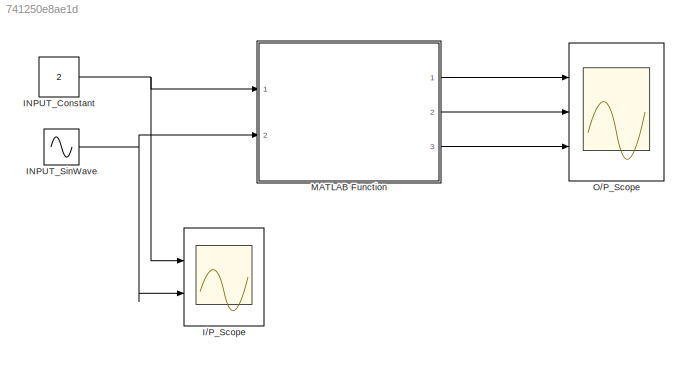
MODEL slx_741250e8ae1d
KIND model
CONFIG AbsTol = auto
CONFIG FixedStep = auto
CONFIG MaxStep = auto
CONFIG MinStep = auto
CONFIG RelTol = 1e-3
CONFIG SampleTimeConstraint = Unconstrained
CONFIG Solver = VariableStepAuto
CONFIG SolverMode = Auto
CONFIG SolverName = VariableStepAuto
CONFIG StartTime = 0.0
CONFIG StopTime = 10
BLOCK [Scope] I//P_Scope
  NumInputPorts = 2
  Ports = [2]
  ScopeSpecificationString = Simulink.scopes.TimeScopeBlockCfg('CurrentConfiguration', extmgr.ConfigurationSet(extmgr.Configuration('Core','General UI',true),extmgr.Configuration('Core','Source UI',true),extmgr.Configuration('Sources','WiredSimulink',true),extmgr.Configuration('Visuals','Time Domain',true,'SerializedDisplays',{struct('MinYLimReal','1.00000','MaxYLimReal','3.00000','YLabelReal','','MinYLimMag','1.00000','MaxYL...<+2009ch>
BLOCK [Constant] INPUT_Constant
  Value = 2
BLOCK [Sin] INPUT_SinWave
  Amplitude = 5
  Ports = [0, 1]
  SampleTime = 0
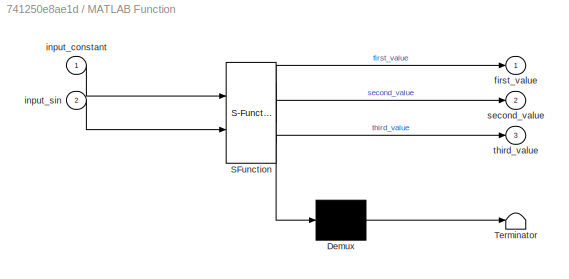
BLOCK [SubSystem] MATLAB Function
  ErrorFcn = Stateflow.Translate.translate
  PermitHierarchicalResolution = ExplicitOnly
  Ports = [2, 3]
  RequestExecContextInheritance = off
  SFBlockType = MATLAB Function
  TreatAsAtomicUnit = on
  Variant = off
BLOCK [Demux] MATLAB Function/ Demux 
  Outputs = 1
  Ports = [1, 1]
BLOCK [S-Function] MATLAB Function/ SFunction 
  EnableBusSupport = on
  FunctionName = sf_sfun
  PortCounts = [2 4]
  Ports = [2, 4]
  SFunctionDeploymentMode = off
  Tag = Stateflow S-Function MatlabFunctionBlock 2
BLOCK [Terminator] MATLAB Function/ Terminator 
BLOCK [Outport] MATLAB Function/first_value
  IconDisplay = Port number
BLOCK [Inport] MATLAB Function/input_constant
  IconDisplay = Port number
BLOCK [Inport] MATLAB Function/input_sin
  IconDisplay = Port number
  Port = 2
BLOCK [Outport] MATLAB Function/second_value
  IconDisplay = Port number
  Port = 2
BLOCK [Outport] MATLAB Function/third_value
  IconDisplay = Port number
  Port = 3
BLOCK [Scope] O//P_Scope
  NumInputPorts = 3
  Ports = [3]
  ScopeSpecificationString = Simulink.scopes.TimeScopeBlockCfg('CurrentConfiguration', extmgr.ConfigurationSet(extmgr.Configuration('Core','General UI',true),extmgr.Configuration('Core','Source UI',true),extmgr.Configuration('Sources','WiredSimulink',true,'DataLoggingVariableName','ScopeData1'),extmgr.Configuration('Visuals','Time Domain',true,'SerializedDisplays',{struct('MinYLimReal','-4.22816','MaxYLimReal','8.2452','YLabe...<+2773ch>
NET INPUT_Constant:1 -> I//P_Scope:1, MATLAB Function:1
NET INPUT_SinWave:1 -> I//P_Scope:2, MATLAB Function:2
LINE MATLAB Function:1 -> O//P_Scope:1
LINE MATLAB Function:2 -> O//P_Scope:2
LINE MATLAB Function:3 -> O//P_Scope:3
note: NET lines group one-source signal fan-out (src -> all destinations, sorted); 1:1 wires keep LINE
CHART MATLAB Function states=1 transitions=1
  STATE_LABEL 'eML_blk_kernel()'
  STATE_LABEL 'SCRIPT:\nfunction [first_value,second_value,third_value] = my_Func(input_constant,input_sin)\n%#codegen\nfirst_value = input_sin + input_constant;\nsecond_value = input_sin * input_constant;\nthird_value = first_value - input_sin;\nend\n'
